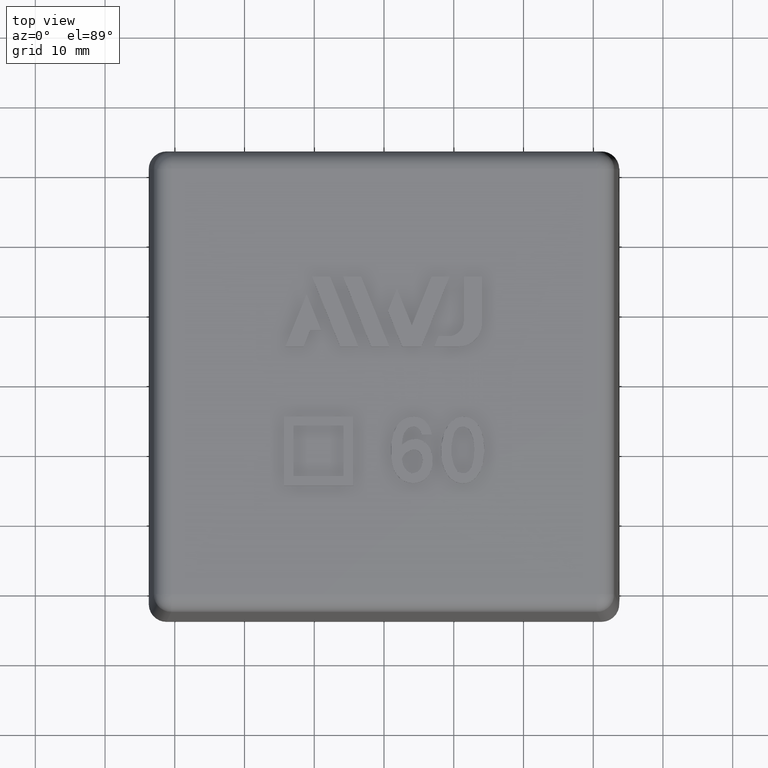
[diagram: clean part render]
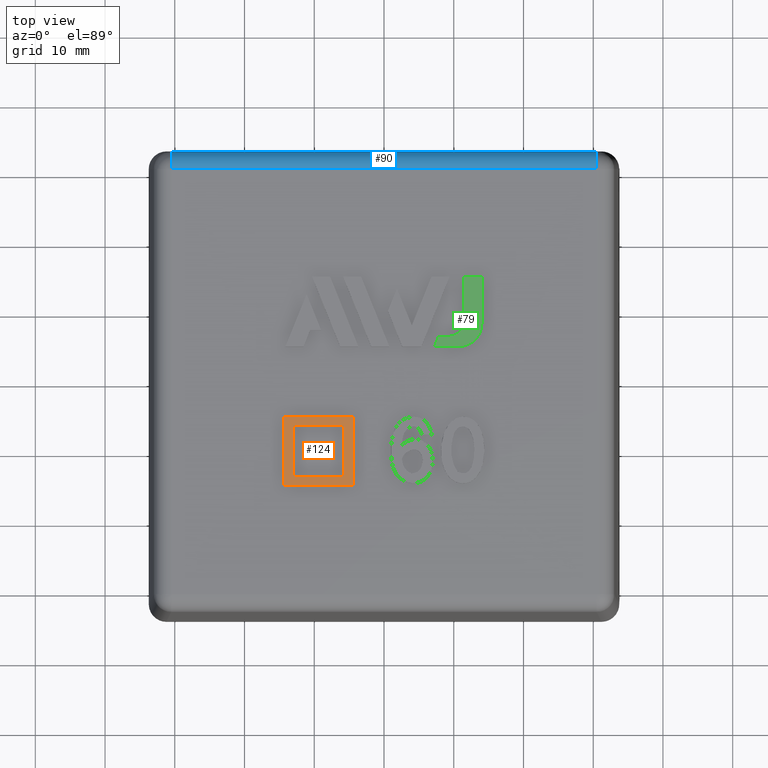
[diagram: same view with three faces highlighted in distinct colors, each labeled with its STEP entity id]
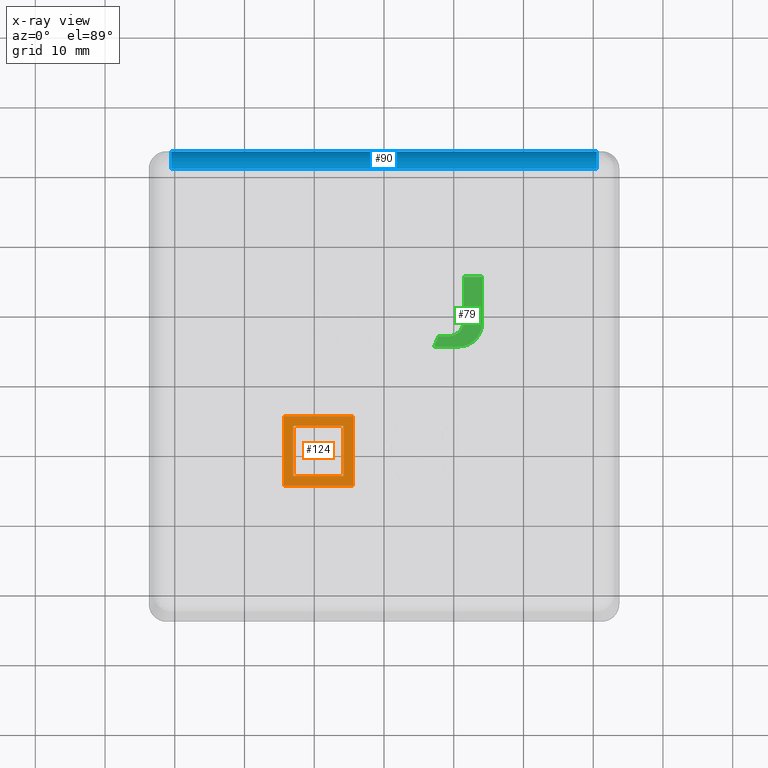
[diagram: x-ray of the same camera — body ghosted, the three highlighted faces saturated]
A machine part, top view with three faces highlighted in distinct colors.
The next image is the same camera in x-ray (body ghosted, the three faces saturated) — at least one of them is partly hidden behind the body in this view.
Their STEP definitions:

[orange] entity #124 — the highlighted planar face has unit normal (0, 0, 1).
#124 = ADVANCED_FACE( '', ( #264, #265 ), #266, .T. );
#264 = FACE_OUTER_BOUND( '', #438, .T. );
#265 = FACE_BOUND( '', #439, .T. );
#266 = PLANE( '', #440 );
#438 = EDGE_LOOP( '', ( #927, #928, #929, #930 ) );
#439 = EDGE_LOOP( '', ( #931, #932, #933, #934 ) );
#440 = AXIS2_PLACEMENT_3D( '', #935, #936, #937 );
#927 = ORIENTED_EDGE( '', *, *, #1304, .F. );
#928 = ORIENTED_EDGE( '', *, *, #1307, .F. );
#929 = ORIENTED_EDGE( '', *, *, #1309, .F. );
#930 = ORIENTED_EDGE( '', *, *, #1310, .F. );
#931 = ORIENTED_EDGE( '', *, *, #1295, .F. );
#932 = ORIENTED_EDGE( '', *, *, #1299, .F. );
#933 = ORIENTED_EDGE( '', *, *, #1302, .F. );
#934 = ORIENTED_EDGE( '', *, *, #1312, .F. );
#935 = CARTESIAN_POINT( '', ( -14.3735142045455, -10.0010000000000, 43.5525000000000 ) );
#936 = DIRECTION( '', ( 0.000000000000000, 0.000000000000000, 1.00000000000000 ) );
#937 = DIRECTION( '', ( 0.000000000000000, -1.00000000000000, 0.000000000000000 ) );
#1295 = EDGE_CURVE( '', #1572, #1574, #1575, .T. );
#1299 = EDGE_CURVE( '', #1579, #1572, #1581, .T. );
#1302 = EDGE_CURVE( '', #1584, #1579, #1586, .T. );
#1304 = EDGE_CURVE( '', #1587, #1589, #1590, .T. );
#1307 = EDGE_CURVE( '', #1592, #1587, #1594, .T. );
#1309 = EDGE_CURVE( '', #1595, #1592, #1597, .T. );
#1310 = EDGE_CURVE( '', #1589, #1595, #1598, .T. );
#1312 = EDGE_CURVE( '', #1574, #1584, #1600, .T. );
#1572 = VERTEX_POINT( '', #2128 );
#1574 = VERTEX_POINT( '', #2131 );
#1575 = B_SPLINE_CURVE_WITH_KNOTS( '', 2, ( #2132, #2133, #2134 ), .UNSPECIFIED., .F., .F., ( 3, 3 ), ( 0.000000000000000, 1.00000000000000 ), .UNSPECIFIED. );
#1579 = VERTEX_POINT( '', #2141 );
#1581 = B_SPLINE_CURVE_WITH_KNOTS( '', 2, ( #2144, #2145, #2146 ), .UNSPECIFIED., .F., .F., ( 3, 3 ), ( 3.00000000000000, 4.00000000000000 ), .UNSPECIFIED. );
#1584 = VERTEX_POINT( '', #2151 );
#1586 = B_SPLINE_CURVE_WITH_KNOTS( '', 2, ( #2154, #2155, #2156 ), .UNSPECIFIED., .F., .F., ( 3, 3 ), ( 2.00000000000000, 3.00000000000000 ), .UNSPECIFIED. );
#1587 = VERTEX_POINT( '', #2157 );
#1589 = VERTEX_POINT( '', #2160 );
#1590 = B_SPLINE_CURVE_WITH_KNOTS( '', 2, ( #2161, #2162, #2163 ), .UNSPECIFIED., .F., .F., ( 3, 3 ), ( 0.000000000000000, 1.00000000000000 ), .UNSPECIFIED. );
#1592 = VERTEX_POINT( '', #2166 );
#1594 = B_SPLINE_CURVE_WITH_KNOTS( '', 2, ( #2169, #2170, #2171 ), .UNSPECIFIED., .F., .F., ( 3, 3 ), ( 3.00000000000000, 4.00000000000000 ), .UNSPECIFIED. );
#1595 = VERTEX_POINT( '', #2172 );
#1597 = B_SPLINE_CURVE_WITH_KNOTS( '', 2, ( #2175, #2176, #2177 ), .UNSPECIFIED., .F., .F., ( 3, 3 ), ( 2.00000000000000, 3.00000000000000 ), .UNSPECIFIED. );
#1598 = B_SPLINE_CURVE_WITH_KNOTS( '', 2, ( #2178, #2179, #2180 ), .UNSPECIFIED., .F., .F., ( 3, 3 ), ( 1.00000000000000, 2.00000000000000 ), .UNSPECIFIED. );
#1600 = B_SPLINE_CURVE_WITH_KNOTS( '', 2, ( #2184, #2185, #2186 ), .UNSPECIFIED., .F., .F., ( 3, 3 ), ( 1.00000000000000, 2.00000000000000 ), .UNSPECIFIED. );
#2128 = CARTESIAN_POINT( '', ( -13.0098778409091, -13.5919090909091, 43.5525000000000 ) );
#2131 = CARTESIAN_POINT( '', ( -5.78260511363640, -13.5919090909091, 43.5525000000000 ) );
#2132 = CARTESIAN_POINT( '', ( -13.0098778409091, -13.5919090909091, 43.5525000000000 ) );
#2133 = CARTESIAN_POINT( '', ( -9.39624147727276, -13.5919090909091, 43.5525000000000 ) );
#2134 = CARTESIAN_POINT( '', ( -5.78260511363640, -13.5919090909091, 43.5525000000000 ) );
#2141 = CARTESIAN_POINT( '', ( -13.0098778409091, -6.36463636363638, 43.5525000000000 ) );
#2144 = CARTESIAN_POINT( '', ( -13.0098778409091, -6.36463636363638, 43.5525000000000 ) );
#2145 = CARTESIAN_POINT( '', ( -13.0098778409091, -9.97827272727274, 43.5525000000000 ) );
#2146 = CARTESIAN_POINT( '', ( -13.0098778409091, -13.5919090909091, 43.5525000000000 ) );
#2151 = CARTESIAN_POINT( '', ( -5.78260511363640, -6.36463636363638, 43.5525000000000 ) );
#2154 = CARTESIAN_POINT( '', ( -5.78260511363640, -6.36463636363638, 43.5525000000000 ) );
#2155 = CARTESIAN_POINT( '', ( -9.39624147727276, -6.36463636363638, 43.5525000000000 ) );
#2156 = CARTESIAN_POINT( '', ( -13.0098778409091, -6.36463636363638, 43.5525000000000 ) );
#2157 = CARTESIAN_POINT( '', ( -14.3735142045455, -14.9555454545455, 43.5525000000000 ) );
#2160 = CARTESIAN_POINT( '', ( -14.3735142045455, -5.04645454545456, 43.5525000000000 ) );
#2161 = CARTESIAN_POINT( '', ( -14.3735142045455, -14.9555454545455, 43.5525000000000 ) );
#2162 = CARTESIAN_POINT( '', ( -14.3735142045455, -10.0010000000000, 43.5525000000000 ) );
#2163 = CARTESIAN_POINT( '', ( -14.3735142045455, -5.04645454545456, 43.5525000000000 ) );
#2166 = CARTESIAN_POINT( '', ( -4.41896875000004, -14.9555454545455, 43.5525000000000 ) );
#2169 = CARTESIAN_POINT( '', ( -4.41896875000004, -14.9555454545455, 43.5525000000000 ) );
#2170 = CARTESIAN_POINT( '', ( -9.39624147727276, -14.9555454545455, 43.5525000000000 ) );
#2171 = CARTESIAN_POINT( '', ( -14.3735142045455, -14.9555454545455, 43.5525000000000 ) );
#2172 = CARTESIAN_POINT( '', ( -4.41896875000004, -5.04645454545456, 43.5525000000000 ) );
#2175 = CARTESIAN_POINT( '', ( -4.41896875000004, -5.04645454545456, 43.5525000000000 ) );
#2176 = CARTESIAN_POINT( '', ( -4.41896875000004, -10.0010000000000, 43.5525000000000 ) );
#2177 = CARTESIAN_POINT( '', ( -4.41896875000004, -14.9555454545455, 43.5525000000000 ) );
#2178 = CARTESIAN_POINT( '', ( -14.3735142045455, -5.04645454545456, 43.5525000000000 ) );
#2179 = CARTESIAN_POINT( '', ( -9.39624147727276, -5.04645454545456, 43.5525000000000 ) );
#2180 = CARTESIAN_POINT( '', ( -4.41896875000004, -5.04645454545456, 43.5525000000000 ) );
#2184 = CARTESIAN_POINT( '', ( -5.78260511363640, -13.5919090909091, 43.5525000000000 ) );
#2185 = CARTESIAN_POINT( '', ( -5.78260511363640, -9.97827272727274, 43.5525000000000 ) );
#2186 = CARTESIAN_POINT( '', ( -5.78260511363640, -6.36463636363638, 43.5525000000000 ) );

[blue] entity #90 — the highlighted cylindrical surface (edge-blend (fillet) strip) has radius 2.5325 mm, axis along (1, 0, 0).
#90 = ADVANCED_FACE( '', ( #195 ), #196, .T. );
#195 = FACE_OUTER_BOUND( '', #369, .T. );
#196 = CYLINDRICAL_SURFACE( '', #370, 2.53250000000000 );
#369 = EDGE_LOOP( '', ( #682, #683, #684, #685 ) );
#370 = AXIS2_PLACEMENT_3D( '', #686, #687, #688 );
#682 = ORIENTED_EDGE( '', *, *, #1236, .T. );
#683 = ORIENTED_EDGE( '', *, *, #1164, .F. );
#684 = ORIENTED_EDGE( '', *, *, #1237, .F. );
#685 = ORIENTED_EDGE( '', *, *, #1232, .F. );
#686 = CARTESIAN_POINT( '', ( -33.7329000000000, 30.4927349983374, 40.5200000000000 ) );
#687 = DIRECTION( '', ( 1.00000000000000, 0.000000000000000, 0.000000000000000 ) );
#688 = DIRECTION( '', ( 0.000000000000000, 0.000000000000000, 1.00000000000000 ) );
#1164 = EDGE_CURVE( '', #1347, #1349, #1350, .F. );
#1232 = EDGE_CURVE( '', #1471, #1476, #1477, .F. );
#1236 = EDGE_CURVE( '', #1471, #1349, #1482, .T. );
#1237 = EDGE_CURVE( '', #1476, #1347, #1483, .T. );
#1347 = VERTEX_POINT( '', #1674 );
#1349 = VERTEX_POINT( '', #1677 );
#1350 = LINE( '', #1678, #1679 );
#1471 = VERTEX_POINT( '', #1972 );
#1476 = VERTEX_POINT( '', #1978 );
#1477 = LINE( '', #1979, #1980 );
#1482 = CIRCLE( '', #1987, 2.53250000000000 );
#1483 = CIRCLE( '', #1988, 2.53250000000000 );
#1674 = CARTESIAN_POINT( '', ( 30.4927349983374, 30.4927349983374, 43.0525000000000 ) );
#1677 = CARTESIAN_POINT( '', ( -30.4927349983374, 30.4927349983374, 43.0525000000000 ) );
#1678 = CARTESIAN_POINT( '', ( -30.4493015291943, 30.4927349983374, 43.0525000000000 ) );
#1679 = VECTOR( '', #2236, 1000.00000000000 );
#1972 = CARTESIAN_POINT( '', ( -30.4927349983374, 33.0248492863210, 40.5641982193024 ) );
#1978 = CARTESIAN_POINT( '', ( 30.4927349983374, 33.0248492863210, 40.5641982193024 ) );
#1979 = CARTESIAN_POINT( '', ( 30.4493015291943, 33.0248492863210, 40.5641982193024 ) );
#1980 = VECTOR( '', #2300, 1000.00000000000 );
#1987 = AXIS2_PLACEMENT_3D( '', #2306, #2307, #2308 );
#1988 = AXIS2_PLACEMENT_3D( '', #2309, #2310, #2311 );
#2236 = DIRECTION( '', ( 1.00000000000000, 0.000000000000000, 0.000000000000000 ) );
#2300 = DIRECTION( '', ( -1.00000000000000, 0.000000000000000, 0.000000000000000 ) );
#2306 = CARTESIAN_POINT( '', ( -30.4927349983374, 30.4927349983374, 40.5200000000000 ) );
#2307 = DIRECTION( '', ( 1.00000000000000, 0.000000000000000, 0.000000000000000 ) );
#2308 = DIRECTION( '', ( 0.000000000000000, 0.000000000000000, -1.00000000000000 ) );
#2309 = CARTESIAN_POINT( '', ( 30.4927349983374, 30.4927349983374, 40.5200000000000 ) );
#2310 = DIRECTION( '', ( 1.00000000000000, 0.000000000000000, 0.000000000000000 ) );
#2311 = DIRECTION( '', ( 0.000000000000000, 0.000000000000000, -1.00000000000000 ) );

[green] entity #79 — the highlighted planar face has unit normal (0, 0, -1).
#79 = ADVANCED_FACE( '', ( #170 ), #171, .F. );
#170 = FACE_OUTER_BOUND( '', #340, .T. );
#171 = PLANE( '', #341 );
#340 = EDGE_LOOP( '', ( #566, #567, #568, #569, #570, #571, #572, #573 ) );
#341 = AXIS2_PLACEMENT_3D( '', #574, #575, #576 );
#566 = ORIENTED_EDGE( '', *, *, #1204, .T. );
#567 = ORIENTED_EDGE( '', *, *, #1207, .T. );
#568 = ORIENTED_EDGE( '', *, *, #1208, .T. );
#569 = ORIENTED_EDGE( '', *, *, #1209, .T. );
#570 = ORIENTED_EDGE( '', *, *, #1210, .T. );
#571 = ORIENTED_EDGE( '', *, *, #1211, .T. );
#572 = ORIENTED_EDGE( '', *, *, #1212, .T. );
#573 = ORIENTED_EDGE( '', *, *, #1213, .T. );
#574 = CARTESIAN_POINT( '', ( 9.21688208438997, 8.67302279439252, 43.5520000000000 ) );
#575 = DIRECTION( '', ( 0.000000000000000, 0.000000000000000, -1.00000000000000 ) );
#576 = DIRECTION( '', ( 0.927200633736574, -0.374565060835224, 0.000000000000000 ) );
#1204 = EDGE_CURVE( '', #1428, #1426, #1429, .T. );
#1207 = EDGE_CURVE( '', #1426, #1431, #1433, .T. );
#1208 = EDGE_CURVE( '', #1431, #1434, #1435, .T. );
#1209 = EDGE_CURVE( '', #1434, #1436, #1437, .T. );
#1210 = EDGE_CURVE( '', #1436, #1438, #1439, .T. );
#1211 = EDGE_CURVE( '', #1438, #1440, #1441, .T. );
#1212 = EDGE_CURVE( '', #1440, #1442, #1443, .T. );
#1213 = EDGE_CURVE( '', #1442, #1428, #1444, .T. );
#1426 = VERTEX_POINT( '', #1810 );
#1428 = VERTEX_POINT( '', #1813 );
#1429 = LINE( '', #1814, #1815 );
#1431 = VERTEX_POINT( '', #1818 );
#1433 = LINE( '', #1821, #1822 );
#1434 = VERTEX_POINT( '', #1823 );
#1435 = LINE( '', #1824, #1825 );
#1436 = VERTEX_POINT( '', #1826 );
#1437 = CIRCLE( '', #1827, 2.22444500000000 );
#1438 = VERTEX_POINT( '', #1828 );
#1439 = LINE( '', #1829, #1830 );
#1440 = VERTEX_POINT( '', #1831 );
#1441 = LINE( '', #1832, #1833 );
#1442 = VERTEX_POINT( '', #1834 );
#1443 = LINE( '', #1835, #1836 );
#1444 = CIRCLE( '', #1837, 3.33666750000000 );
#1810 = CARTESIAN_POINT( '', ( 14.0554347883750, 14.9966783770600, 43.5520000000000 ) );
#1813 = CARTESIAN_POINT( '', ( 14.0554347883750, 8.33066625000000, 43.5520000000000 ) );
#1814 = CARTESIAN_POINT( '', ( 14.0554347883750, 8.33066625000000, 43.5520000000000 ) );
#1815 = VECTOR( '', #2275, 1000.00000000000 );
#1818 = CARTESIAN_POINT( '', ( 11.4413270843900, 14.9966783770600, 43.5520000000000 ) );
#1821 = CARTESIAN_POINT( '', ( 14.0554347883750, 14.9966783770600, 43.5520000000000 ) );
#1822 = VECTOR( '', #2278, 1000.00000000000 );
#1823 = CARTESIAN_POINT( '', ( 11.4413270843900, 8.67302279439252, 43.5520000000000 ) );
#1824 = CARTESIAN_POINT( '', ( 11.4413270843900, 14.9966783770600, 43.5520000000000 ) );
#1825 = VECTOR( '', #2279, 1000.00000000000 );
#1826 = CARTESIAN_POINT( '', ( 9.21688208438997, 6.44857779439252, 43.5520000000000 ) );
#1827 = AXIS2_PLACEMENT_3D( '', #2280, #2281, #2282 );
#1828 = CARTESIAN_POINT( '', ( 7.79607678843247, 6.44857779439252, 43.5520000000000 ) );
#1829 = CARTESIAN_POINT( '', ( 9.21688208438997, 6.44857779439252, 43.5520000000000 ) );
#1830 = VECTOR( '', #2283, 1000.00000000000 );
#1831 = CARTESIAN_POINT( '', ( 7.20838954165748, 4.99399874999999, 43.5520000000000 ) );
#1832 = CARTESIAN_POINT( '', ( 7.79607678843247, 6.44857779439251, 43.5520000000000 ) );
#1833 = VECTOR( '', #2284, 1000.00000000000 );
#1834 = CARTESIAN_POINT( '', ( 10.7187672883750, 4.99399875000000, 43.5520000000000 ) );
#1835 = CARTESIAN_POINT( '', ( 7.20838954165748, 4.99399875000000, 43.5520000000000 ) );
#1836 = VECTOR( '', #2285, 1000.00000000000 );
#1837 = AXIS2_PLACEMENT_3D( '', #2286, #2287, #2288 );
#2275 = DIRECTION( '', ( 2.77555756156289E-016, 1.00000000000000, -6.12303176911189E-017 ) );
#2278 = DIRECTION( '', ( -1.00000000000000, -1.11022302462516E-016, 1.01968962758690E-032 ) );
#2279 = DIRECTION( '', ( -2.22044604925031E-016, -1.00000000000000, 6.12303176911189E-017 ) );
#2280 = CARTESIAN_POINT( '', ( 9.21688208438997, 8.67302279439252, 43.5520000000000 ) );
#2281 = DIRECTION( '', ( 0.000000000000000, 0.000000000000000, -1.00000000000000 ) );
#2282 = DIRECTION( '', ( -3.33066907387547E-016, -1.00000000000000, 0.000000000000000 ) );
#2283 = DIRECTION( '', ( -1.00000000000000, -2.77555756156289E-016, 1.69948271264483E-032 ) );
#2284 = DIRECTION( '', ( -0.374606136016172, -0.927184039368147, 5.67717732886465E-017 ) );
#2285 = DIRECTION( '', ( 1.00000000000000, 1.66533453693774E-016, -1.35958617011586E-032 ) );
#2286 = CARTESIAN_POINT( '', ( 10.7187672883750, 8.33066625000000, 43.5520000000000 ) );
#2287 = DIRECTION( '', ( 0.000000000000000, 0.000000000000000, 1.00000000000000 ) );
#2288 = DIRECTION( '', ( -6.10622663543836E-016, -1.00000000000000, 0.000000000000000 ) );